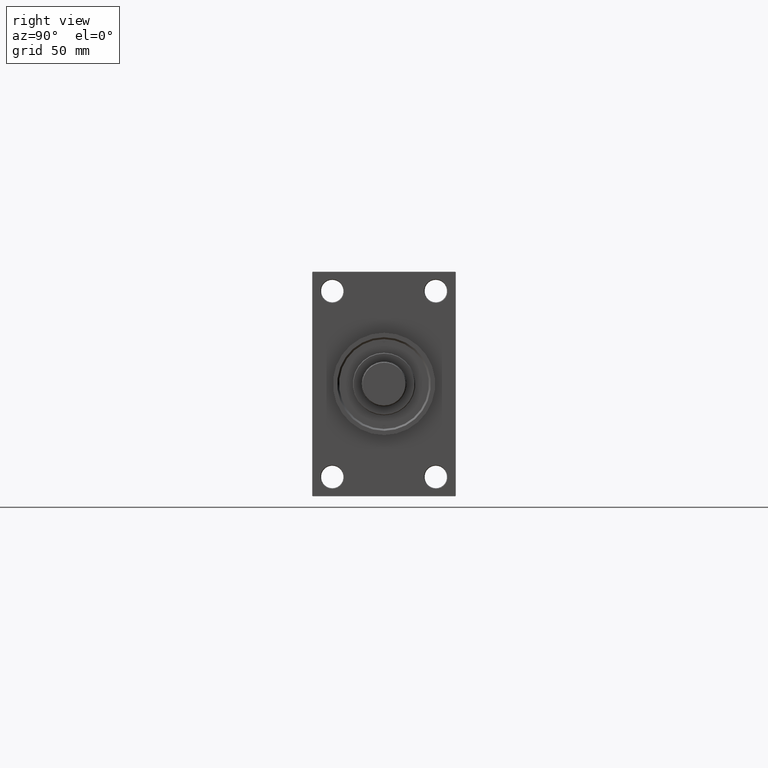
[diagram: clean part render]
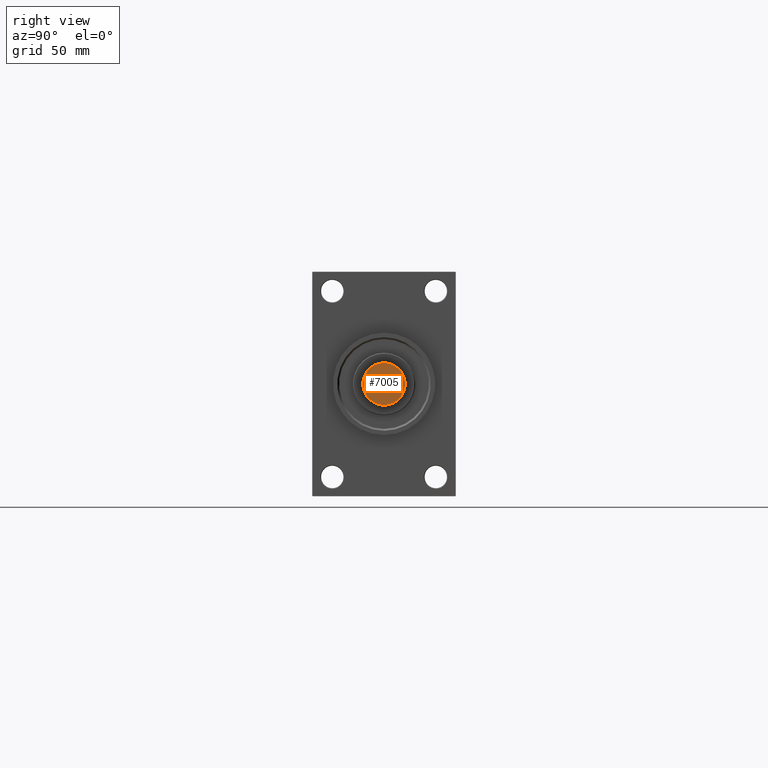
[diagram: same view with one face highlighted and labeled with its STEP entity id]
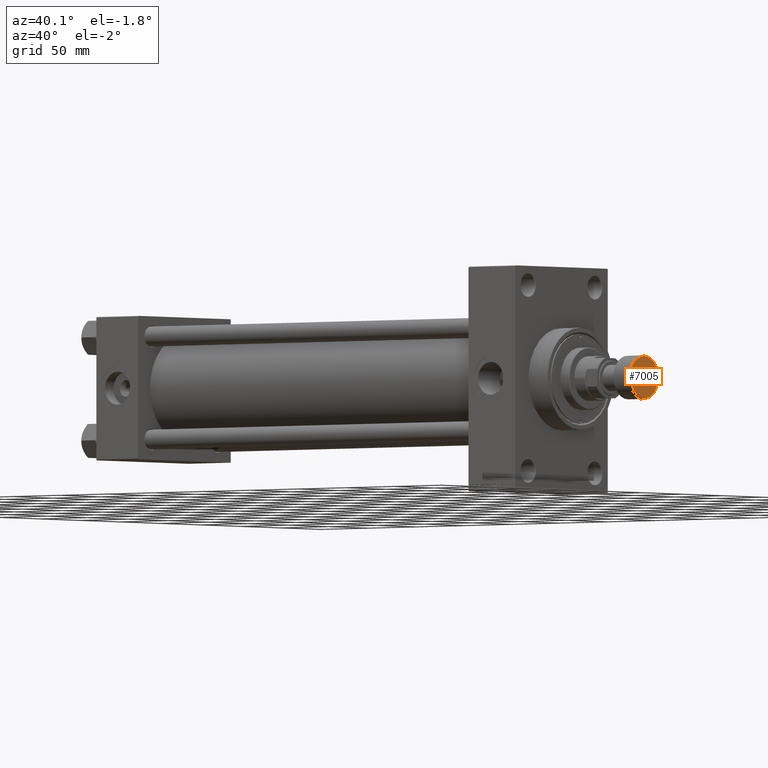
[diagram: same view with one face highlighted and labeled with its STEP entity id]
A machine part, right view. The second image highlights one B-rep face of the part: STEP entity #7005.
A second angle (auxiliary view) of the same face is appended — the face is thin or edge-on in the first view.
In plain terms, the highlighted planar face has unit normal (1, 0, 0).
Its self-contained STEP definition (entity closure, byte-faithful):
#7005 = ADVANCED_FACE ( 'NONE', ( #47022 ), #35541, .T. ) ;
#8021 = DIRECTION ( 'NONE',  ( 1.000000000000000000, 0.000000000000000000, 0.000000000000000000 ) ) ;
#10795 = ORIENTED_EDGE ( 'NONE', *, *, #22764, .T. ) ;
#14614 = CARTESIAN_POINT ( 'NONE',  ( 17.00000000000000355, 0.000000000000000000, 0.000000000000000000 ) ) ;
#15599 = CARTESIAN_POINT ( 'NONE',  ( 0.000000000000000000, 0.000000000000000000, 0.000000000000000000 ) ) ;
#17202 = DIRECTION ( 'NONE',  ( 1.000000000000000000, 0.000000000000000000, -0.000000000000000000 ) ) ;
#18457 = VERTEX_POINT ( 'NONE', #36159 ) ;
#19634 = ORIENTED_EDGE ( 'NONE', *, *, #23203, .T. ) ;
#20869 = CARTESIAN_POINT ( 'NONE',  ( 0.000000000000000000, 0.000000000000000000, 0.000000000000000000 ) ) ;
#21848 = AXIS2_PLACEMENT_3D ( 'NONE', #20869, #35778, #17202 ) ;
#21993 = DIRECTION ( 'NONE',  ( 1.000000000000000000, 0.000000000000000000, 0.000000000000000000 ) ) ;
#22764 = EDGE_CURVE ( 'NONE', #18457, #46977, #31664, .T. ) ;
#23203 = EDGE_CURVE ( 'NONE', #46977, #18457, #48064, .T. ) ;
#24616 = AXIS2_PLACEMENT_3D ( 'NONE', #15599, #47948, #8021 ) ;
#28277 = EDGE_LOOP ( 'NONE', ( #19634, #10795 ) ) ;
#28855 = CARTESIAN_POINT ( 'NONE',  ( 0.000000000000000000, 0.000000000000000000, 0.000000000000000000 ) ) ;
#31664 = CIRCLE ( 'NONE', #34794, 17.00000000000000355 ) ;
#32526 = DIRECTION ( 'NONE',  ( 0.000000000000000000, 0.000000000000000000, 1.000000000000000000 ) ) ;
#34794 = AXIS2_PLACEMENT_3D ( 'NONE', #28855, #32526, #21993 ) ;
#35541 = PLANE ( 'NONE',  #21848 ) ;
#35778 = DIRECTION ( 'NONE',  ( 0.000000000000000000, 0.000000000000000000, 1.000000000000000000 ) ) ;
#36159 = CARTESIAN_POINT ( 'NONE',  ( -17.00000000000000355, 2.112515728529184856E-15, 0.000000000000000000 ) ) ;
#46977 = VERTEX_POINT ( 'NONE', #14614 ) ;
#47022 = FACE_OUTER_BOUND ( 'NONE', #28277, .T. ) ;
#47948 = DIRECTION ( 'NONE',  ( 0.000000000000000000, 0.000000000000000000, 1.000000000000000000 ) ) ;
#48064 = CIRCLE ( 'NONE', #24616, 17.00000000000000355 ) ;